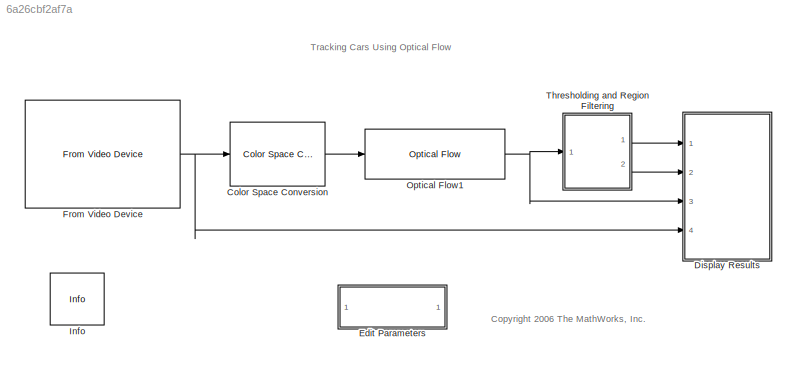
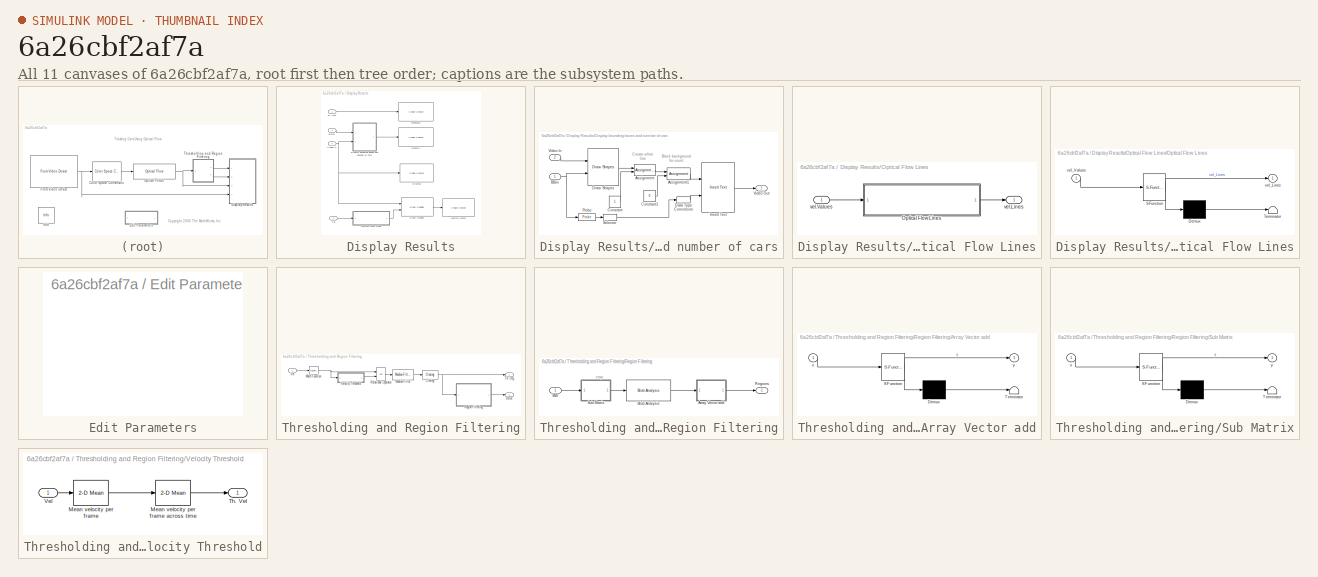
[diagram: thumbnail index - all 11 canvases of the model, root first then tree order]
MODEL slx_6a26cbf2af7a
KIND model
WORKSPACE source: MATLAB code (in-file)
WORKSPACE line_row = 22
BLOCK [Reference] Color Space Conversion  REF=visionconversions/Color Space
 Conversion
  Ports = [1, 1]
  SourceBlock = visionconversions/Color Space\n Conversion
  SourceType = Color Space Conversion
  conversion = Obsolete
  conversionActive = R'G'B' to intensity
  imagePorts = One multidimensional signal
  rec = Rec. 601 (SDTV)
  sys = 1125/60/2:1
  wp_str = D65
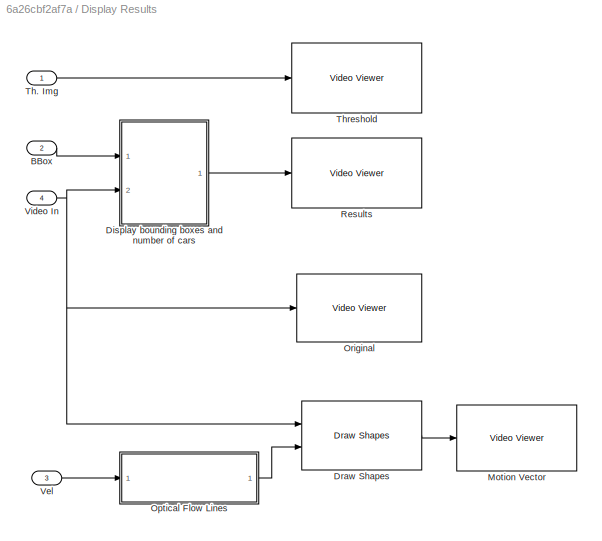
BLOCK [SubSystem] Display Results
  FunctionWithSeparateData = off
  MaskHideContents = off
  MinAlgLoopOccurrences = off
  Opaque = off
  Ports = [4]
  PropExecContextOutsideSubsystem = off
  RTWSystemCode = Auto
  RequestExecContextInheritance = off
BLOCK [Inport] Display Results/BBox
  IconDisplay = Port number
  Port = 2
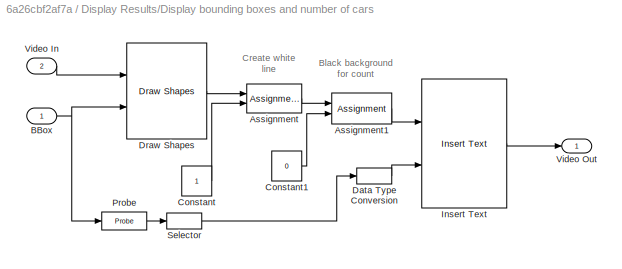
BLOCK [SubSystem] Display Results/Display bounding boxes and number of cars
  FunctionWithSeparateData = off
  MaskHideContents = off
  MinAlgLoopOccurrences = off
  Opaque = off
  Ports = [2, 1]
  PropExecContextOutsideSubsystem = off
  RTWSystemCode = Auto
  RequestExecContextInheritance = off
BLOCK [Assignment] Display Results/Display bounding boxes and number of cars/Assignment
  IndexOptions = Index vector (dialog),Assign all,Assign all
  Indices = [22:23],[],[]
  NumberOfDimensions = 3
  OutputSizes = 1, 1
  Ports = [2, 1]
BLOCK [Assignment] Display Results/Display bounding boxes and number of cars/Assignment1
  IndexOptions = Index vector (dialog),Index vector (dialog),Assign all
  Indices = [1:15],[1:30],[]
  NumberOfDimensions = 3
  OutputSizes = 1, 1
  Ports = [2, 1]
BLOCK [Inport] Display Results/Display bounding boxes and number of cars/BBox
  IconDisplay = Port number
BLOCK [Constant] Display Results/Display bounding boxes and number of cars/Constant
  OutDataTypeStr = single
BLOCK [Constant] Display Results/Display bounding boxes and number of cars/Constant1
  OutDataTypeStr = single
  Value = 0
BLOCK [DataTypeConversion] Display Results/Display bounding boxes and number of cars/Data Type Conversion
  OutDataTypeStr = uint8
  RndMeth = Floor
  SaturateOnIntegerOverflow = off
BLOCK [Reference] Display Results/Display bounding boxes and number of cars/Draw Shapes  REF=visiontextngfix/Draw Shapes
  LockScale = off
  Ports = [2, 1]
  SourceBlock = visiontextngfix/Draw Shapes
  SourceType = Draw Shapes
  accumFracLength = 14
  accumMode = Same as product output
  accumWordLength = 32
  antialiasing = off
  color = [0 1 0]
  display = User-specified value
  fill = off
  fillClrSource = Specify via dialog
  imagePorts = One multidimensional signal
  inType = Obsolete
  intensity = 200
  memoryFracLength = 15
  memoryMode = Specify word length
  memoryWordLength = 16
  opacity = 0.6
  overflowMode = off
  prodOutputFracLength = 14
  prodOutputMode = Binary point scaling
  prodOutputWordLength = 32
  roundingMode = Floor
  shape = Rectangles
  viewport = Entire image
BLOCK [Reference] Display Results/Display bounding boxes and number of cars/Insert Text  REF=visiontextngfix/Insert Text
  Ports = [2, 1]
  SourceBlock = visiontextngfix/Insert Text
  SourceType = Insert Text
  antiAliased = on
  blockFontSize = 12
  dummyVar1 = 0
  dummyVar2 = 0
  dummyVar3 = 0
  dummyVar4 = 0
  fontFace = LucidaTypewriterRegular
  getTextColorFrom = Specify via dialog
  getTextIntensityFrom = Specify via dialog
  getTextLocFrom = Specify via dialog
  getTextOpacityFrom = Specify via dialog
  imagePorts = One multidimensional signal
  inputType = Obsolete
  isInputTransposed = off
  textColor = [1 1 1]
  textIntensity = 1
  textLoc = [1 1]
  textOpacity = 1.0
  theText = '%4d'
BLOCK [Probe] Display Results/Display bounding boxes and number of cars/Probe
  Ports = [1, 1]
  ProbeComplexSignal = off
  ProbeSampleTime = off
  ProbeSignalDimensions = on
  ProbeWidth = off
  ProbeWidthDataType = uint8
BLOCK [Selector] Display Results/Display bounding boxes and number of cars/Selector
  IndexOptions = Index vector (dialog),Index vector (dialog)
  Indices = 1,1
  InputPortWidth = 3
  NumberOfDimensions = 2
  OutputSizes = 99,1
  Ports = [1, 1]
BLOCK [Inport] Display Results/Display bounding boxes and number of cars/Video In
  IconDisplay = Port number
  Port = 2
BLOCK [Outport] Display Results/Display bounding boxes and number of cars/Video Out
  IconDisplay = Port number
BLOCK [Reference] Display Results/Draw Shapes  REF=visiontextngfix/Draw Shapes
  LockScale = off
  Ports = [2, 1]
  SourceBlock = visiontextngfix/Draw Shapes
  SourceType = Draw Shapes
  accumFracLength = 14
  accumMode = Same as product output
  accumWordLength = 32
  antialiasing = off
  color = [255 255 0]
  display = User-specified value
  fill = off
  fillClrSource = Specify via dialog
  imagePorts = One multidimensional signal
  inType = Obsolete
  intensity = 200
  memoryFracLength = 15
  memoryMode = Specify word length
  memoryWordLength = 16
  opacity = 0.6
  overflowMode = off
  prodOutputFracLength = 14
  prodOutputMode = Binary point scaling
  prodOutputWordLength = 32
  roundingMode = Floor
  shape = Lines
  viewport = Entire image
BLOCK [Reference] Display Results/Motion Vector  REF=visionsinks/Video Viewer
  AxisZoom = on
  DefaultConfigurationName = vipscopes.VideoViewerScopeCfg
  FigPos = [335 243 160 142]
  OpenAtMdlStart = on
  Ports = [1]
  SourceBlock = visionsinks/Video Viewer
  SourceType = Video Viewer
  UserDataPersistent = on
  colormapValue = gray(256)
  imagePorts = One multidimensional signal
  inputType = Obsolete7b
  maxInputVal = 255
  minInputVal = 0
  specRange = off
  trueSizedOnce = on
  useColorMap = off
BLOCK [SubSystem] Display Results/Optical Flow Lines
  FunctionWithSeparateData = off
  MaskHideContents = off
  MinAlgLoopOccurrences = off
  Opaque = off
  Ports = [1, 1]
  PropExecContextOutsideSubsystem = off
  RTWSystemCode = Auto
  RequestExecContextInheritance = off
BLOCK [SubSystem] Display Results/Optical Flow Lines/Optical Flow Lines
  ErrorFcn = Stateflow.Translate.translate
  FunctionWithSeparateData = off
  MaskHideContents = off
  MinAlgLoopOccurrences = off
  Opaque = off
  PermitHierarchicalResolution = ExplicitOnly
  Ports = [1, 1]
  PropExecContextOutsideSubsystem = off
  RTWSystemCode = Auto
  RequestExecContextInheritance = off
  SFBlockType = MATLAB Function
  TreatAsAtomicUnit = on
BLOCK [Demux] Display Results/Optical Flow Lines/Optical Flow Lines/ Demux 
  Outputs = 1
  Ports = [1, 1]
BLOCK [S-Function] Display Results/Optical Flow Lines/Optical Flow Lines/ SFunction 
  EnableBusSupport = on
  FunctionName = sf_sfun
  Parameters = scaleFactor
  PortCounts = [1 2]
  Ports = [1, 2]
  Tag = Stateflow S-Function optical_flow_example 1
BLOCK [Terminator] Display Results/Optical Flow Lines/Optical Flow Lines/ Terminator 
BLOCK [Outport] Display Results/Optical Flow Lines/Optical Flow Lines/vel_Lines
  IconDisplay = Port number
BLOCK [Inport] Display Results/Optical Flow Lines/Optical Flow Lines/vel_Values
  IconDisplay = Port number
BLOCK [Outport] Display Results/Optical Flow Lines/vel.Lines
  IconDisplay = Port number
BLOCK [Inport] Display Results/Optical Flow Lines/vel.Values
  IconDisplay = Port number
BLOCK [Reference] Display Results/Original  REF=visionsinks/Video Viewer
  AxisZoom = on
  DefaultConfigurationName = vipscopes.VideoViewerScopeCfg
  FigPos = [149 237 160 141]
  OpenAtMdlStart = on
  Ports = [1]
  SourceBlock = visionsinks/Video Viewer
  SourceType = Video Viewer
  UserDataPersistent = on
  colormapValue = gray(256)
  imagePorts = One multidimensional signal
  inputType = Obsolete7b
  maxInputVal = 255
  minInputVal = 0
  specRange = off
  trueSizedOnce = on
  useColorMap = off
BLOCK [Reference] Display Results/Results  REF=visionsinks/Video Viewer
  AxisZoom = on
  DefaultConfigurationName = vipscopes.VideoViewerScopeCfg
  FigPos = [712 242 163 141]
  OpenAtMdlStart = on
  Ports = [1]
  SourceBlock = visionsinks/Video Viewer
  SourceType = Video Viewer
  UserDataPersistent = on
  colormapValue = gray(256)
  imagePorts = One multidimensional signal
  inputType = Obsolete7b
  maxInputVal = 255
  minInputVal = 0
  specRange = off
  trueSizedOnce = on
  useColorMap = off
BLOCK [Inport] Display Results/Th. Img
  IconDisplay = Port number
BLOCK [Reference] Display Results/Threshold  REF=visionsinks/Video Viewer
  AxisZoom = on
  DefaultConfigurationName = vipscopes.VideoViewerScopeCfg
  FigPos = [524 242 160 141]
  OpenAtMdlStart = on
  Ports = [1]
  SourceBlock = visionsinks/Video Viewer
  SourceType = Video Viewer
  UserDataPersistent = on
  colormapValue = gray(256)
  imagePorts = One multidimensional signal
  inputType = Obsolete7b
  maxInputVal = 255
  minInputVal = 0
  specRange = off
  trueSizedOnce = on
  useColorMap = off
BLOCK [Inport] Display Results/Vel
  IconDisplay = Port number
  Port = 3
BLOCK [Inport] Display Results/Video In
  IconDisplay = Port number
  Port = 4
BLOCK [SubSystem] Edit Parameters
  FunctionWithSeparateData = off
  MaskHideContents = off
  MinAlgLoopOccurrences = off
  Opaque = off
  Ports = []
  PropExecContextOutsideSubsystem = off
  RTWSystemCode = Auto
  RequestExecContextInheritance = off
BLOCK [Reference] From Video Device  REF=imaqlib/From Video Device
  BayerSensorAlignment = grbg
  BlockHandle = 2324.001
  CanDoHWTrigger = no
  DataType = single
  DevXMLPath = /Applications/MATLAB_R2012b.app/toolbox/imaq/imaqadaptors/maci64
  Device = macvideo 1 (Built-in iSight)
  DeviceMenu = macvideo 1 (Built-in iSight)
  EnableHWTrigger = off
  EngLibPath = /Applications/MATLAB_R2012b.app/toolbox/imaq/imaqblks/imaqmex/maci64
  EngXMLPath = /Applications/MATLAB_R2012b.app/toolbox/imaq/imaq/private
  ObjConstructor = videoinput('macvideo', 1)
  OutputPortsMode = One multidimensional signal
  Ports = [0, 1]
  ROIColumn = 0
  ROIHeight = 480
  ROIPosition = [0 0 480 640]
  ROIRow = 0
  ROIWidth = 640
  ReturnedColorSpace = rgb
  SampleTime = 1/30
  SourceBlock = imaqlib/From Video Device
  SourceType = From Video Device
  TriggerConfiguration = none/none
  UserDataPersistent = on
  VideoFormat = YCbCr422_640x480
  VideoFormatMenu = YCbCr422_640x480
  VideoSource = default
BLOCK [Reference] Info  REF=vipmisc/Info
  FunctionWithSeparateData = off
  GeneratePreprocessorConditionals = off
  Ports = []
  ShowPortLabels = FromPortIcon
  SourceBlock = vipmisc/Info
  SourceType = Info
  SystemSampleTime = -1
BLOCK [Reference] Optical Flow1  REF=visionanalysis/Optical Flow
  LockScale = off
  N = 1
  Ports = [1, 1]
  SourceBlock = visionanalysis/Optical Flow
  SourceType = Optical Flow
  accumFracLength = 20
  accumMode = Same as product output
  accumWordLength = 32
  discardNormalFlow = off
  eigTh = 0.0039
  firstCoeffFracLength = 12
  firstCoeffMode = Same word length as first input
  firstCoeffWordLength = 16
  gradMethod = Difference filter [-1 1]
  lambda = 1
  maxAllowAbsDiff = eps
  maxIter = 10
  memoryFracLength = 20
  memoryMode = Same as accumulator
  memoryWordLength = 32
  method = Horn-Schunck
  numInports = 3
  outVelForm = Horizontal and vertical components in complex form
  outputCurrentImage = off
  outputFracLength = 20
  outputMode = Binary point scaling
  outputWordLength = 32
  overflowMode = on
  prodOutputFracLength = 20
  prodOutputMode = Binary point scaling
  prodOutputWordLength = 32
  roundingMode = Nearest
  sigmaS = 1.5
  sigmaW = 1
  stop_criteria = When maximum number of iterations is reached
  which2img = Current frame and N-th frame back
BLOCK [SubSystem] Thresholding and Region Filtering
  FunctionWithSeparateData = off
  MaskHideContents = off
  MinAlgLoopOccurrences = off
  Opaque = off
  Ports = [1, 2]
  PropExecContextOutsideSubsystem = off
  RTWSystemCode = Auto
  RequestExecContextInheritance = off
BLOCK [Outport] Thresholding and Region Filtering/BBox
  IconDisplay = Port number
  Port = 2
BLOCK [Reference] Thresholding and Region Filtering/Closing  REF=visionmorphops/Closing
  Ports = [1, 1]
  SourceBlock = visionmorphops/Closing
  SourceType = Closing
  nhoodsrc = Specify via dialog
  strel = strel('line',6,45)
BLOCK [Math] Thresholding and Region Filtering/Math Function
  Operator = magnitude^2
  Ports = [1, 1]
BLOCK [Reference] Thresholding and Region Filtering/Median Filter  REF=visionanalysis/Median Filter
  LockScale = off
  Ports = [1, 1]
  SourceBlock = visionanalysis/Median Filter
  SourceType = Median Filter
  accumFracLength = 30
  accumMode = Same as input
  accumWordLength = 32
  nghbood = [3 3]
  outSize = Same as input port I
  outputFracLength = 15
  outputMode = Same as input
  outputWordLength = 16
  overflowMode = off
  padSrc = Specify via dialog
  padType = Constant
  padVal = 1
  prodOutputFracLength = 30
  prodOutputMode = Same as input
  prodOutputWordLength = 32
  roundingMode = Floor
BLOCK [SubSystem] Thresholding and Region Filtering/Region Filtering
  FunctionWithSeparateData = off
  MaskHideContents = off
  MinAlgLoopOccurrences = off
  Opaque = off
  Ports = [1, 1]
  PropExecContextOutsideSubsystem = off
  RTWSystemCode = Auto
  RequestExecContextInheritance = off
BLOCK [SubSystem] Thresholding and Region Filtering/Region Filtering/Array Vector add
  ErrorFcn = Stateflow.Translate.translate
  FunctionWithSeparateData = off
  MaskHideContents = off
  MinAlgLoopOccurrences = off
  Opaque = off
  PermitHierarchicalResolution = ExplicitOnly
  Ports = [1, 1]
  PropExecContextOutsideSubsystem = off
  RTWSystemCode = Auto
  RequestExecContextInheritance = off
  SFBlockType = MATLAB Function
  TreatAsAtomicUnit = on
BLOCK [Demux] Thresholding and Region Filtering/Region Filtering/Array Vector add/ Demux 
  Outputs = 1
  Ports = [1, 1]
BLOCK [S-Function] Thresholding and Region Filtering/Region Filtering/Array Vector add/ SFunction 
  EnableBusSupport = on
  FunctionName = sf_sfun
  Parameters = line_row
  PortCounts = [1 2]
  Ports = [1, 2]
  Tag = Stateflow S-Function optical_flow_example 2
BLOCK [Terminator] Thresholding and Region Filtering/Region Filtering/Array Vector add/ Terminator 
BLOCK [Inport] Thresholding and Region Filtering/Region Filtering/Array Vector add/u
  IconDisplay = Port number
BLOCK [Outport] Thresholding and Region Filtering/Region Filtering/Array Vector add/y
  IconDisplay = Port number
BLOCK [Inport] Thresholding and Region Filtering/Region Filtering/BW
  IconDisplay = Port number
BLOCK [Reference] Thresholding and Region Filtering/Region Filtering/Blob Analysis  REF=visionstatistics/Blob Analysis
  LockScale = off
  Ports = [1, 1]
  SourceBlock = visionstatistics/Blob Analysis
  SourceType = Blob Analysis
  Tag = vipblks_row_conv
  accumFracLength = 0
  accumMode = Binary point scaling
  accumWordLength = 32
  angle = off
  area = off
  bBox = on
  centroid = off
  conn = 8
  eccentricity = off
  equivDiameterSq = off
  excludeBorderBlob = on
  extent = off
  fillValues = -1
  firstCoeffFracLength = 14
  firstCoeffMode = Binary point scaling
  firstCoeffWordLength = 16
  isCount = off
  isFill = on
  isLabel = off
  isOutVarDim = on
  majorAxis = off
  maxArea = 3600
  maxBlobs = 80
  memoryFracLength = 16
  memoryMode = Same as product output
  memoryWordLength = 32
  minArea = 300
  minorAxis = off
  outDT = double
  outputFracLength = 16
  outputMode = Binary point scaling
  outputWordLength = 32
  overflowMode = off
  perimeter = off
  prodOutputFracLength = 16
  prodOutputMode = Binary point scaling
  prodOutputWordLength = 32
  roundingMode = Floor
  secondCoeffFracLength = 16
  secondCoeffMode = Binary point scaling
  secondCoeffWordLength = 32
  useMaxArea = on
  useMinArea = on
  warnIfNumBlobsExceeded = on
BLOCK [Outport] Thresholding and Region Filtering/Region Filtering/Regions
  IconDisplay = Port number
BLOCK [SubSystem] Thresholding and Region Filtering/Region Filtering/Sub Matrix
  ErrorFcn = Stateflow.Translate.translate
  FunctionWithSeparateData = off
  MaskHideContents = off
  MinAlgLoopOccurrences = off
  Opaque = off
  PermitHierarchicalResolution = ExplicitOnly
  Ports = [1, 1]
  PropExecContextOutsideSubsystem = off
  RTWSystemCode = Auto
  RequestExecContextInheritance = off
  SFBlockType = MATLAB Function
  TreatAsAtomicUnit = on
BLOCK [Demux] Thresholding and Region Filtering/Region Filtering/Sub Matrix/ Demux 
  Outputs = 1
  Ports = [1, 1]
BLOCK [S-Function] Thresholding and Region Filtering/Region Filtering/Sub Matrix/ SFunction 
  EnableBusSupport = on
  FunctionName = sf_sfun
  Parameters = line_row
  PortCounts = [1 2]
  Ports = [1, 2]
  Tag = Stateflow S-Function optical_flow_example 3
BLOCK [Terminator] Thresholding and Region Filtering/Region Filtering/Sub Matrix/ Terminator 
BLOCK [Inport] Thresholding and Region Filtering/Region Filtering/Sub Matrix/u
  IconDisplay = Port number
BLOCK [Outport] Thresholding and Region Filtering/Region Filtering/Sub Matrix/y
  IconDisplay = Port number
BLOCK [RelationalOperator] Thresholding and Region Filtering/Relational Operator
  InputSameDT = off
  OutDataTypeStr = boolean
  Ports = [2, 1]
BLOCK [Outport] Thresholding and Region Filtering/Th. Img
  IconDisplay = Port number
BLOCK [Inport] Thresholding and Region Filtering/Vel
  IconDisplay = Port number
BLOCK [SubSystem] Thresholding and Region Filtering/Velocity Threshold
  FunctionWithSeparateData = off
  MaskHideContents = off
  MinAlgLoopOccurrences = off
  Opaque = off
  Ports = [1, 1]
  PropExecContextOutsideSubsystem = off
  RTWSystemCode = Auto
  RequestExecContextInheritance = off
BLOCK [Reference] Thresholding and Region Filtering/Velocity Threshold/Mean velocity per frame  REF=visionstatistics/2-D Mean
  InputProcessing = Elements as channels (sample based)
  LockScale = off
  Ports = [1, 1]
  SourceBlock = visionstatistics/2-D Mean
  SourceType = 2-D Mean
  UserDataPersistent = on
  accumDataTypeStr = fixdt([],32,0)
  accumFracLength = 0
  accumLastDataTypeStr = fixdt([],32,0)
  accumMode = Binary point scaling
  accumWordLength = 32
  additionalParams = off
  allowOverrides = on
  dimension = 1
  directionMode = Entire input
  outputDataTypeStr = Inherit: Same as accumulator
  outputFracLength = 30
  outputLastDataTypeStr = Inherit: Same as accumulator
  outputMax = []
  outputMin = []
  outputMode = Same as accumulator
  outputWordLength = 32
  overflowMode = off
  reset_popup = None
  roiEnable = off
  roiFlag = off
  roiOutput = Individual statistics for each ROI
  roiPortion = Entire ROI
  roiType = Rectangles
  roundingMode = Floor
  run = off
  treatSBRowAsCol = on
BLOCK [Reference] Thresholding and Region Filtering/Velocity Threshold/Mean velocity per frame across time  REF=visionstatistics/2-D Mean
  InputProcessing = Elements as channels (sample based)
  LockScale = off
  Ports = [1, 1]
  SourceBlock = visionstatistics/2-D Mean
  SourceType = 2-D Mean
  UserDataPersistent = on
  accumDataTypeStr = fixdt([],32,0)
  accumFracLength = 0
  accumLastDataTypeStr = fixdt([],32,0)
  accumMode = Binary point scaling
  accumWordLength = 32
  additionalParams = off
  allowOverrides = on
  dimension = 1
  directionMode = Entire input
  outputDataTypeStr = Inherit: Same as accumulator
  outputFracLength = 30
  outputLastDataTypeStr = Inherit: Same as accumulator
  outputMax = []
  outputMin = []
  outputMode = Same as accumulator
  outputWordLength = 32
  overflowMode = off
  reset_popup = None
  roiEnable = off
  roiFlag = off
  roiOutput = Individual statistics for each ROI
  roiPortion = Entire ROI
  roiType = Rectangles
  roundingMode = Floor
  run = on
  treatSBRowAsCol = on
BLOCK [Outport] Thresholding and Region Filtering/Velocity Threshold/Th. Vel
  IconDisplay = Port number
BLOCK [Inport] Thresholding and Region Filtering/Velocity Threshold/Vel
  IconDisplay = Port number
ANNOTATION (root): <copyright redacted>
ANNOTATION (root): Tracking Cars Using Optical Flow
ANNOTATION Display Results/Display bounding boxes and number of cars: Black background for count
ANNOTATION Display Results/Display bounding boxes and number of cars: Create white line
ANNOTATION Thresholding and Region Filtering/Region Filtering: crop
LINE Color Space Conversion:1 -> Optical Flow1:1
LINE Display Results/BBox:1 -> Display Results/Display bounding boxes and number of cars:1
LINE Display Results/Display bounding boxes and number of cars/Assignment1:1 -> Display Results/Display bounding boxes and number of cars/Insert Text:1
LINE Display Results/Display bounding boxes and number of cars/Assignment:1 -> Display Results/Display bounding boxes and number of cars/Assignment1:1
NET Display Results/Display bounding boxes and number of cars/BBox:1 -> Display Results/Display bounding boxes and number of cars/Draw Shapes:2, Display Results/Display bounding boxes and number of cars/Probe:1
LINE Display Results/Display bounding boxes and number of cars/Constant1:1 -> Display Results/Display bounding boxes and number of cars/Assignment1:2
LINE Display Results/Display bounding boxes and number of cars/Constant:1 -> Display Results/Display bounding boxes and number of cars/Assignment:2
LINE Display Results/Display bounding boxes and number of cars/Data Type Conversion:1 -> Display Results/Display bounding boxes and number of cars/Insert Text:2
LINE Display Results/Display bounding boxes and number of cars/Draw Shapes:1 -> Display Results/Display bounding boxes and number of cars/Assignment:1
LINE Display Results/Display bounding boxes and number of cars/Insert Text:1 -> Display Results/Display bounding boxes and number of cars/Video Out:1
LINE Display Results/Display bounding boxes and number of cars/Probe:1 -> Display Results/Display bounding boxes and number of cars/Selector:1
LINE Display Results/Display bounding boxes and number of cars/Selector:1 -> Display Results/Display bounding boxes and number of cars/Data Type Conversion:1
LINE Display Results/Display bounding boxes and number of cars/Video In:1 -> Display Results/Display bounding boxes and number of cars/Draw Shapes:1
LINE Display Results/Display bounding boxes and number of cars:1 -> Display Results/Results:1
LINE Display Results/Draw Shapes:1 -> Display Results/Motion Vector:1
LINE Display Results/Optical Flow Lines/Optical Flow Lines:1 -> Display Results/Optical Flow Lines/vel.Lines:1
LINE Display Results/Optical Flow Lines/vel.Values:1 -> Display Results/Optical Flow Lines/Optical Flow Lines:1
LINE Display Results/Optical Flow Lines:1 -> Display Results/Draw Shapes:2
LINE Display Results/Th. Img:1 -> Display Results/Threshold:1
LINE Display Results/Vel:1 -> Display Results/Optical Flow Lines:1
NET Display Results/Video In:1 -> Display Results/Display bounding boxes and number of cars:2, Display Results/Draw Shapes:1, Display Results/Original:1
NET From Video Device:1 -> Color Space Conversion:1, Display Results:4
NET Optical Flow1:1 -> Display Results:3, Thresholding and Region Filtering:1
NET Thresholding and Region Filtering/Closing:1 -> Thresholding and Region Filtering/Region Filtering:1, Thresholding and Region Filtering/Th. Img:1
NET Thresholding and Region Filtering/Math Function:1 -> Thresholding and Region Filtering/Relational Operator:1, Thresholding and Region Filtering/Velocity Threshold:1
LINE Thresholding and Region Filtering/Median Filter:1 -> Thresholding and Region Filtering/Closing:1
LINE Thresholding and Region Filtering/Region Filtering/Array Vector add:1 -> Thresholding and Region Filtering/Region Filtering/Regions:1
LINE Thresholding and Region Filtering/Region Filtering/BW:1 -> Thresholding and Region Filtering/Region Filtering/Sub Matrix:1
LINE Thresholding and Region Filtering/Region Filtering/Blob Analysis:1 -> Thresholding and Region Filtering/Region Filtering/Array Vector add:1
LINE Thresholding and Region Filtering/Region Filtering/Sub Matrix:1 -> Thresholding and Region Filtering/Region Filtering/Blob Analysis:1
LINE Thresholding and Region Filtering/Region Filtering:1 -> Thresholding and Region Filtering/BBox:1
LINE Thresholding and Region Filtering/Relational Operator:1 -> Thresholding and Region Filtering/Median Filter:1
LINE Thresholding and Region Filtering/Vel:1 -> Thresholding and Region Filtering/Math Function:1
LINE Thresholding and Region Filtering/Velocity Threshold/Mean velocity per frame across time:1 -> Thresholding and Region Filtering/Velocity Threshold/Th. Vel:1
LINE Thresholding and Region Filtering/Velocity Threshold/Mean velocity per frame:1 -> Thresholding and Region Filtering/Velocity Threshold/Mean velocity per frame across time:1
LINE Thresholding and Region Filtering/Velocity Threshold/Vel:1 -> Thresholding and Region Filtering/Velocity Threshold/Mean velocity per frame:1
LINE Thresholding and Region Filtering/Velocity Threshold:1 -> Thresholding and Region Filtering/Relational Operator:2
LINE Thresholding and Region Filtering:1 -> Display Results:1
LINE Thresholding and Region Filtering:2 -> Display Results:2
note: NET lines group one-source signal fan-out (src -> all destinations, sorted); 1:1 wires keep LINE
